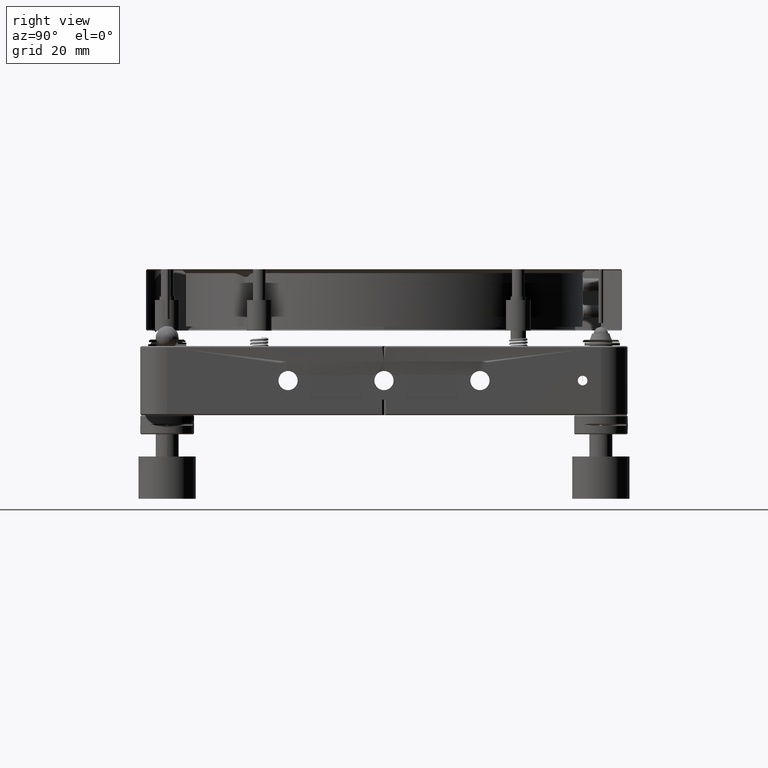
[diagram: clean part render]
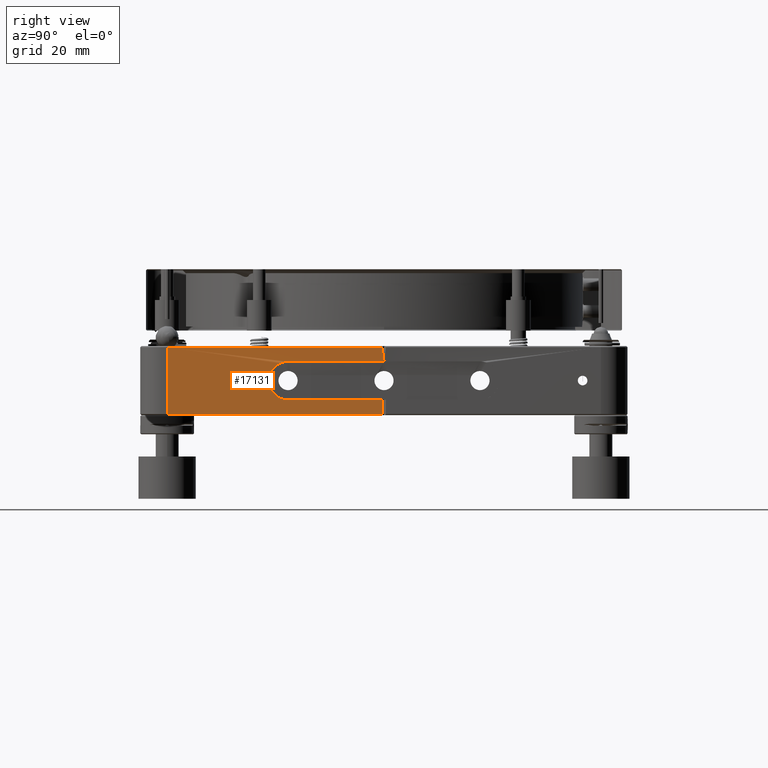
[diagram: same view with one face highlighted and labeled with its STEP entity id]
A machine part, right view. The second image highlights one B-rep face of the part: STEP entity #17131.
In plain terms, the highlighted planar face has unit normal (-1, -0, 0).
Its self-contained STEP definition (entity closure, byte-faithful):
#330 = AXIS2_PLACEMENT_3D ( 'NONE', #16966, #22076, #2004 ) ;
#490 = CARTESIAN_POINT ( 'NONE',  ( 63.50000000000000000, -29.99999999999997868, 0.6544984694978899231 ) ) ;
#706 = CARTESIAN_POINT ( 'NONE',  ( 63.50000000000001421, -25.65449846949785240, -4.999999999999985789 ) ) ;
#829 = VERTEX_POINT ( 'NONE', #3786 ) ;
#848 = DIRECTION ( 'NONE',  ( -1.092739197465705164E-16, 1.000000000000000000, -0.000000000000000000 ) ) ;
#1743 = DIRECTION ( 'NONE',  ( -0.000000000000000000, -0.000000000000000000, -1.000000000000000000 ) ) ;
#1842 = CARTESIAN_POINT ( 'NONE',  ( 63.50000000000000000, -27.51809490185447160, 4.368931941771306171 ) ) ;
#2004 = DIRECTION ( 'NONE',  ( 1.092739197465705164E-16, -1.000000000000000000, 0.000000000000000000 ) ) ;
#2045 = CARTESIAN_POINT ( 'NONE',  ( 62.99999999999998579, -24.99999999999997868, 5.000000000000002665 ) ) ;
#2249 = CARTESIAN_POINT ( 'NONE',  ( 62.99999999999998579, -16.66666666666664298, 5.000000000000002665 ) ) ;
#2268 = CARTESIAN_POINT ( 'NONE',  ( 63.50000000000000000, -29.86986338334155633, -1.308739421796382585 ) ) ;
#2278 = VERTEX_POINT ( 'NONE', #18080 ) ;
#2294 = CARTESIAN_POINT ( 'NONE',  ( 63.50000000000000000, -24.99999999999998224, -4.999999999999988454 ) ) ;
#3786 = CARTESIAN_POINT ( 'NONE',  ( 63.50000000000000000, -0.4999999999999857891, -8.700000000000033040 ) ) ;
#3829 = CARTESIAN_POINT ( 'NONE',  ( 63.50000000000001421, -29.86986338334156343, 1.308739421796417002 ) ) ;
#4333 = LINE ( 'NONE', #7906, #9578 ) ;
#4528 = VECTOR ( 'NONE', #1743, 1000.000000000000000 ) ;
#4570 = ORIENTED_EDGE ( 'NONE', *, *, #12962, .F. ) ;
#5029 = ORIENTED_EDGE ( 'NONE', *, *, #5294, .F. ) ;
#5097 = EDGE_CURVE ( 'NONE', #12309, #13601, #17489, .T. ) ;
#5294 = EDGE_CURVE ( 'NONE', #829, #17794, #18374, .T. ) ;
#5300 = CARTESIAN_POINT ( 'NONE',  ( 63.50000000000001421, -28.07273359987456729, -3.998334211990886011 ) ) ;
#5546 = VERTEX_POINT ( 'NONE', #8069 ) ;
#5725 = CARTESIAN_POINT ( 'NONE',  ( 63.50000000000000000, -24.99999999999997868, 5.000000000000016875 ) ) ;
#6161 = ORIENTED_EDGE ( 'NONE', *, *, #14790, .F. ) ;
#6191 = ORIENTED_EDGE ( 'NONE', *, *, #5097, .F. ) ;
#6668 = EDGE_CURVE ( 'NONE', #17794, #13654, #15792, .T. ) ;
#6732 = EDGE_CURVE ( 'NONE', #2278, #12309, #16404, .T. ) ;
#7406 = CARTESIAN_POINT ( 'NONE',  ( 63.50000000000000000, -28.99833421199087624, -3.072733599874560628 ) ) ;
#7906 = CARTESIAN_POINT ( 'NONE',  ( 63.50000000000000000, -0.4999999999999865663, 9.000000000000001776 ) ) ;
#8069 = CARTESIAN_POINT ( 'NONE',  ( 63.35870082328987252, 3.288219307053487196E-14, 5.000000000000004441 ) ) ;
#8267 = B_SPLINE_CURVE_WITH_KNOTS ( 'NONE', 3,
 ( #17547, #20990, #2249, #2045 ),
 .UNSPECIFIED., .F., .F.,
 ( 4, 4 ),
 ( 0.000000000000000000, 1.000000000000000000 ),
 .UNSPECIFIED. ) ;
#8387 = CARTESIAN_POINT ( 'NONE',  ( 63.50000000000000000, -0.4999999999999816813, 8.700000000000002842 ) ) ;
#8540 = ORIENTED_EDGE ( 'NONE', *, *, #6668, .F. ) ;
#8711 = DIRECTION ( 'NONE',  ( -5.463695987328652162E-17, 1.000000000000000000, -5.463695987328525821E-17 ) ) ;
#8858 = CARTESIAN_POINT ( 'NONE',  ( 63.50000000000000000, -29.36893194177126887, 2.518094901854514234 ) ) ;
#9578 = VECTOR ( 'NONE', #14847, 1000.000000000000000 ) ;
#10504 = CARTESIAN_POINT ( 'NONE',  ( 63.50000000000000000, 6.906111727983257574E-15, 8.700000000000002842 ) ) ;
#10534 = ORIENTED_EDGE ( 'NONE', *, *, #12454, .F. ) ;
#10758 = CARTESIAN_POINT ( 'NONE',  ( 63.50000000000000000, -28.07273359987456018, 3.998334211990917986 ) ) ;
#10934 = CARTESIAN_POINT ( 'NONE',  ( 63.50000000002262368, -56.49999999999997868, 8.699999999994044941 ) ) ;
#11179 = VECTOR ( 'NONE', #848, 1000.000000000000000 ) ;
#11515 = EDGE_LOOP ( 'NONE', ( #6161, #8540, #5029, #17178, #6191, #20597, #10534, #4570 ) ) ;
#11561 = CARTESIAN_POINT ( 'NONE',  ( 63.49999999999998579, 63.50000000000001421, -8.700000000000034817 ) ) ;
#11751 = VECTOR ( 'NONE', #8711, 1000.000000000000000 ) ;
#11939 = FACE_OUTER_BOUND ( 'NONE', #11515, .T. ) ;
#12013 = CARTESIAN_POINT ( 'NONE',  ( 63.50000000000000000, -0.4999999999999865663, 9.000000000000001776 ) ) ;
#12111 = CARTESIAN_POINT ( 'NONE',  ( 63.50000000000001421, -28.99833421199087269, 3.072733599874590826 ) ) ;
#12309 = VERTEX_POINT ( 'NONE', #2294 ) ;
#12454 = EDGE_CURVE ( 'NONE', #5546, #2278, #8267, .T. ) ;
#12540 = CARTESIAN_POINT ( 'NONE',  ( 63.50000000000000000, -27.51809490185447515, -4.368931941771275085 ) ) ;
#12962 = EDGE_CURVE ( 'NONE', #14737, #5546, #20258, .T. ) ;
#13601 = VERTEX_POINT ( 'NONE', #18772 ) ;
#13654 = VERTEX_POINT ( 'NONE', #10934 ) ;
#13789 = CARTESIAN_POINT ( 'NONE',  ( 63.50000000000000000, -26.30873942179637837, 4.869863383341595409 ) ) ;
#14408 = VECTOR ( 'NONE', #19029, 1000.000000000000000 ) ;
#14440 = CARTESIAN_POINT ( 'NONE',  ( 63.50000000000001421, -26.30873942179638192, -4.869863383341564322 ) ) ;
#14737 = VERTEX_POINT ( 'NONE', #8387 ) ;
#14790 = EDGE_CURVE ( 'NONE', #13654, #14737, #16868, .T. ) ;
#14847 = DIRECTION ( 'NONE',  ( -0.000000000000000000, -0.000000000000000000, -1.000000000000000000 ) ) ;
#15144 = DIRECTION ( 'NONE',  ( 1.092739197465705164E-16, -1.000000000000000000, 0.000000000000000000 ) ) ;
#15792 = LINE ( 'NONE', #19243, #14408 ) ;
#16027 = CARTESIAN_POINT ( 'NONE',  ( 63.50000000000000000, -56.49999999999997868, -8.700000000000033040 ) ) ;
#16146 = CARTESIAN_POINT ( 'NONE',  ( 63.49999999999998579, 63.50000000000001421, -4.999999999999990230 ) ) ;
#16391 = EDGE_CURVE ( 'NONE', #13601, #829, #4333, .T. ) ;
#16404 = B_SPLINE_CURVE_WITH_KNOTS ( 'NONE', 3,
 ( #5725, #18815, #13789, #1842, #10758, #12111, #8858, #3829, #490, #17567, #2268, #20587, #7406, #5300, #12540, #14440, #706, #21556 ),
 .UNSPECIFIED., .F., .F.,
 ( 4, 2, 2, 2, 2, 2, 2, 2, 4 ),
 ( 0.000000000000000000, 0.1250000000000000000, 0.2500000000000000000, 0.3750000000000000000, 0.5000000000000000000, 0.6250000000000000000, 0.7500000000000000000, 0.8750000000000000000, 1.000000000000000000 ),
 .UNSPECIFIED. ) ;
#16868 = LINE ( 'NONE', #10504, #11751 ) ;
#16966 = CARTESIAN_POINT ( 'NONE',  ( 63.49999999999998579, 63.50000000000001421, 9.000000000000001776 ) ) ;
#17131 = ADVANCED_FACE ( 'NONE', ( #11939 ), #18970, .F. ) ;
#17178 = ORIENTED_EDGE ( 'NONE', *, *, #16391, .F. ) ;
#17489 = LINE ( 'NONE', #16146, #11179 ) ;
#17547 = CARTESIAN_POINT ( 'NONE',  ( 62.99999999999997158, 3.469446951953614189E-14, 5.000000000000002665 ) ) ;
#17567 = CARTESIAN_POINT ( 'NONE',  ( 63.50000000000001421, -29.99999999999998224, -0.6544984694978580597 ) ) ;
#17794 = VERTEX_POINT ( 'NONE', #16027 ) ;
#18080 = CARTESIAN_POINT ( 'NONE',  ( 63.24999999999998579, -24.99999999999997868, 5.000000000000009770 ) ) ;
#18374 = LINE ( 'NONE', #11561, #21861 ) ;
#18772 = CARTESIAN_POINT ( 'NONE',  ( 63.50000000000000000, -0.4999999999999854006, -4.999999999999992895 ) ) ;
#18815 = CARTESIAN_POINT ( 'NONE',  ( 63.49999999999998579, -25.65449846949785595, 5.000000000000015987 ) ) ;
#18970 = PLANE ( 'NONE',  #330 ) ;
#19029 = DIRECTION ( 'NONE',  ( 0.000000000000000000, 0.000000000000000000, 1.000000000000000000 ) ) ;
#19243 = CARTESIAN_POINT ( 'NONE',  ( 63.50000000000000000, -56.49999999999997868, 9.000000000000001776 ) ) ;
#20258 = LINE ( 'NONE', #12013, #4528 ) ;
#20587 = CARTESIAN_POINT ( 'NONE',  ( 63.50000000000001421, -29.36893194177127242, -2.518094901854478707 ) ) ;
#20597 = ORIENTED_EDGE ( 'NONE', *, *, #6732, .F. ) ;
#20990 = CARTESIAN_POINT ( 'NONE',  ( 62.99999999999997158, -8.333333333333301951, 5.000000000000002665 ) ) ;
#21556 = CARTESIAN_POINT ( 'NONE',  ( 63.50000000000000000, -24.99999999999998224, -4.999999999999988454 ) ) ;
#21861 = VECTOR ( 'NONE', #15144, 1000.000000000000000 ) ;
#22076 = DIRECTION ( 'NONE',  ( -1.000000000000000000, -1.092739197465705164E-16, 0.000000000000000000 ) ) ;